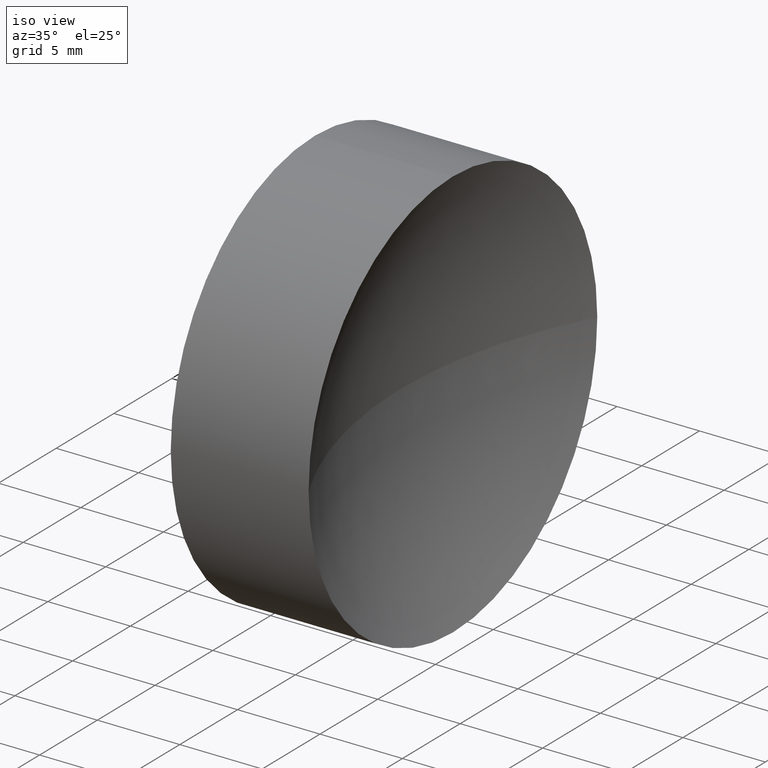
[diagram: clean part render]
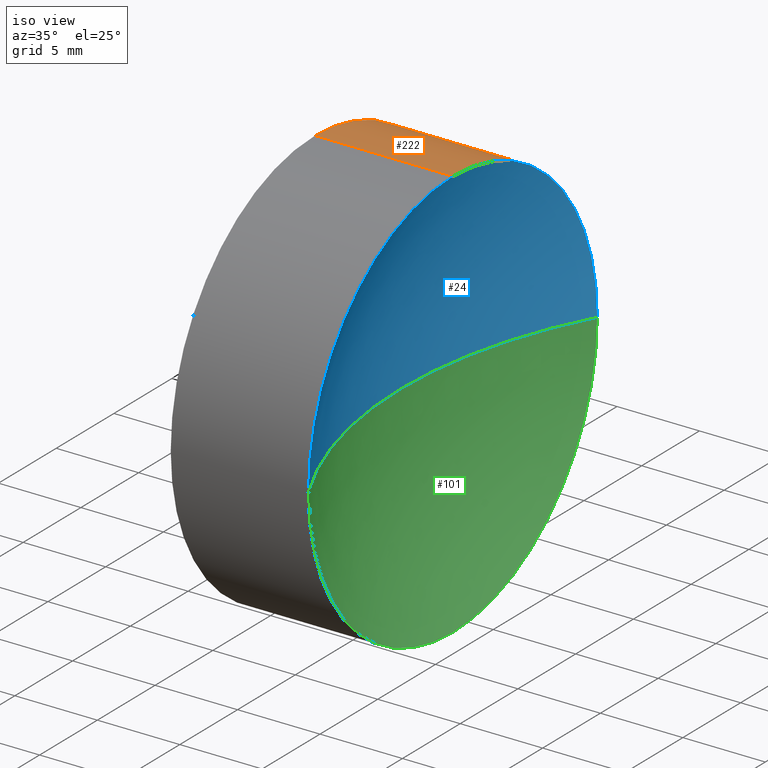
[diagram: same view with three faces highlighted in distinct colors, each labeled with its STEP entity id]
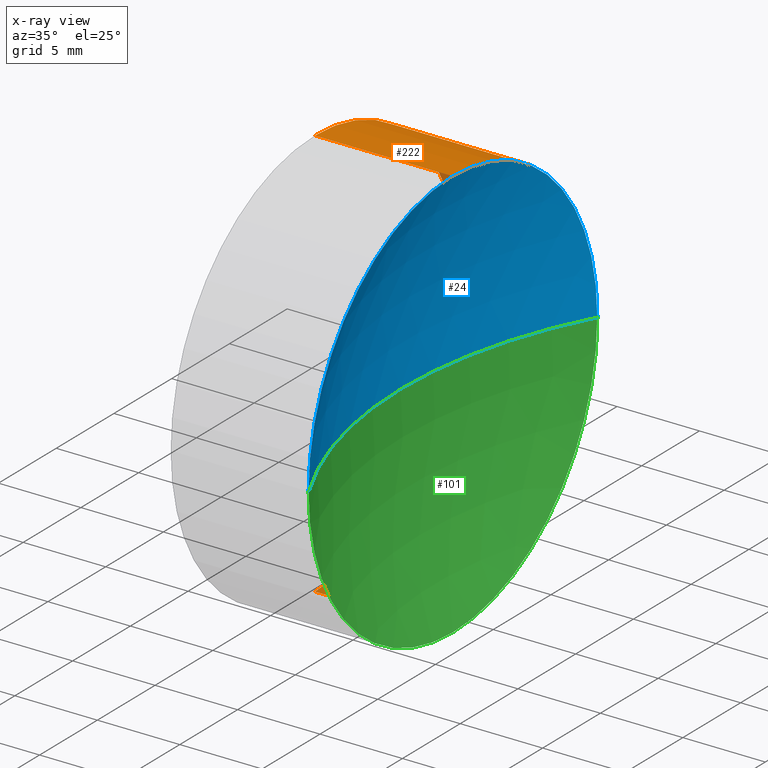
[diagram: x-ray of the same camera — body ghosted, the three highlighted faces saturated]
A machine part, iso view with three faces highlighted in distinct colors.
The next image is the same camera in x-ray (body ghosted, the three faces saturated) — at least one of them is partly hidden behind the body in this view.
Their STEP definitions:

[orange] entity #222 — the highlighted cylindrical surface (partial cylindrical patch) has radius 12.5 mm, axis along (-1, -0, -0).
#5 = ORIENTED_EDGE ( 'NONE', *, *, #220, .F. ) ;
#14 = DIRECTION ( 'NONE',  ( -1.000000000000000000, -0.0000000000000000000, -0.0000000000000000000 ) ) ;
#20 = DIRECTION ( 'NONE',  ( 0.0000000000000000000, 0.0000000000000000000, 1.000000000000000000 ) ) ;
#26 = CIRCLE ( 'NONE', #113, 12.49999999999999600 ) ;
#28 = CARTESIAN_POINT ( 'NONE',  ( 64.23215453445439500, 32.61130143649369700, 12.49999999999999600 ) ) ;
#34 = EDGE_LOOP ( 'NONE', ( #182, #98, #5, #79, #128, #52 ) ) ;
#36 = VECTOR ( 'NONE', #54, 1000.000000000000000 ) ;
#38 = CARTESIAN_POINT ( 'NONE',  ( 55.87281597442936500, 32.61130143649369700, 0.0000000000000000000 ) ) ;
#44 = AXIS2_PLACEMENT_3D ( 'NONE', #223, #45, #100 ) ;
#45 = DIRECTION ( 'NONE',  ( -1.000000000000000000, -0.0000000000000000000, -0.0000000000000000000 ) ) ;
#48 = CARTESIAN_POINT ( 'NONE',  ( 53.06232639267102500, 32.61130143649369700, -12.49999999999999600 ) ) ;
#52 = ORIENTED_EDGE ( 'NONE', *, *, #64, .T. ) ;
#54 = DIRECTION ( 'NONE',  ( -1.000000000000000000, -0.0000000000000000000, -0.0000000000000000000 ) ) ;
#57 = CIRCLE ( 'NONE', #202, 12.49999999999999600 ) ;
#62 = DIRECTION ( 'NONE',  ( -1.000000000000000000, -0.0000000000000000000, -0.0000000000000000000 ) ) ;
#63 = DIRECTION ( 'NONE',  ( 0.0000000000000000000, 0.0000000000000000000, 1.000000000000000000 ) ) ;
#64 = EDGE_CURVE ( 'NONE', #122, #75, #57, .T. ) ;
#74 = FACE_OUTER_BOUND ( 'NONE', #34, .T. ) ;
#75 = VERTEX_POINT ( 'NONE', #190 ) ;
#78 = CARTESIAN_POINT ( 'NONE',  ( 55.87281597442936500, 45.11130143649369700, 0.0000000000000000000 ) ) ;
#79 = ORIENTED_EDGE ( 'NONE', *, *, #114, .F. ) ;
#86 = CIRCLE ( 'NONE', #151, 12.49999999999999600 ) ;
#88 = CARTESIAN_POINT ( 'NONE',  ( 64.23215453445439500, 32.61130143649369700, -12.49999999999999600 ) ) ;
#90 = CARTESIAN_POINT ( 'NONE',  ( 55.87281597442936500, 32.61130143649369700, 12.49999999999999600 ) ) ;
#96 = LINE ( 'NONE', #126, #184 ) ;
#98 = ORIENTED_EDGE ( 'NONE', *, *, #147, .T. ) ;
#100 = DIRECTION ( 'NONE',  ( 0.0000000000000000000, 0.0000000000000000000, 1.000000000000000000 ) ) ;
#103 = CARTESIAN_POINT ( 'NONE',  ( 55.87281597442936500, 32.61130143649369700, 0.0000000000000000000 ) ) ;
#109 = AXIS2_PLACEMENT_3D ( 'NONE', #177, #157, #178 ) ;
#110 = VERTEX_POINT ( 'NONE', #209 ) ;
#113 = AXIS2_PLACEMENT_3D ( 'NONE', #103, #14, #63 ) ;
#114 = EDGE_CURVE ( 'NONE', #159, #214, #26, .T. ) ;
#122 = VERTEX_POINT ( 'NONE', #28 ) ;
#126 = CARTESIAN_POINT ( 'NONE',  ( 53.06232639267102500, 32.61130143649369700, 12.49999999999999600 ) ) ;
#128 = ORIENTED_EDGE ( 'NONE', *, *, #230, .F. ) ;
#146 = DIRECTION ( 'NONE',  ( -1.000000000000000000, -0.0000000000000000000, -0.0000000000000000000 ) ) ;
#147 = EDGE_CURVE ( 'NONE', #162, #110, #163, .T. ) ;
#151 = AXIS2_PLACEMENT_3D ( 'NONE', #38, #164, #20 ) ;
#157 = DIRECTION ( 'NONE',  ( -1.000000000000000000, -0.0000000000000000000, -0.0000000000000000000 ) ) ;
#159 = VERTEX_POINT ( 'NONE', #90 ) ;
#162 = VERTEX_POINT ( 'NONE', #88 ) ;
#163 = LINE ( 'NONE', #48, #36 ) ;
#164 = DIRECTION ( 'NONE',  ( -1.000000000000000000, -0.0000000000000000000, -0.0000000000000000000 ) ) ;
#165 = CARTESIAN_POINT ( 'NONE',  ( 64.23215453445439500, 32.61130143649369700, 0.0000000000000000000 ) ) ;
#174 = EDGE_CURVE ( 'NONE', #75, #162, #211, .T. ) ;
#177 = CARTESIAN_POINT ( 'NONE',  ( 53.06232639267102500, 32.61130143649369700, 0.0000000000000000000 ) ) ;
#178 = DIRECTION ( 'NONE',  ( 0.0000000000000000000, 0.0000000000000000000, 1.000000000000000000 ) ) ;
#182 = ORIENTED_EDGE ( 'NONE', *, *, #174, .T. ) ;
#184 = VECTOR ( 'NONE', #146, 1000.000000000000000 ) ;
#190 = CARTESIAN_POINT ( 'NONE',  ( 64.23215453445439500, 45.11130143649369700, 1.530808498934191100E-015 ) ) ;
#202 = AXIS2_PLACEMENT_3D ( 'NONE', #165, #62, #208 ) ;
#208 = DIRECTION ( 'NONE',  ( 0.0000000000000000000, 0.0000000000000000000, 1.000000000000000000 ) ) ;
#209 = CARTESIAN_POINT ( 'NONE',  ( 55.87281597442936500, 32.61130143649369700, -12.49999999999999600 ) ) ;
#211 = CIRCLE ( 'NONE', #44, 12.49999999999999600 ) ;
#214 = VERTEX_POINT ( 'NONE', #78 ) ;
#220 = EDGE_CURVE ( 'NONE', #214, #110, #86, .T. ) ;
#222 = ADVANCED_FACE ( 'NONE', ( #74 ), #229, .T. ) ;
#223 = CARTESIAN_POINT ( 'NONE',  ( 64.23215453445439500, 32.61130143649369700, 0.0000000000000000000 ) ) ;
#229 = CYLINDRICAL_SURFACE ( 'NONE', #109, 12.49999999999999600 ) ;
#230 = EDGE_CURVE ( 'NONE', #122, #159, #96, .T. ) ;

[blue] entity #24 — the highlighted spherical surface has radius 26.16 mm.
#1 = EDGE_CURVE ( 'NONE', #153, #143, #137, .T. ) ;
#2 = CARTESIAN_POINT ( 'NONE',  ( 64.23215453445439500, 20.11130143649370100, 0.0000000000000000000 ) ) ;
#11 = CIRCLE ( 'NONE', #30, 26.16000000000000400 ) ;
#17 = DIRECTION ( 'NONE',  ( 0.0000000000000000000, 0.0000000000000000000, -1.000000000000000000 ) ) ;
#18 = EDGE_CURVE ( 'NONE', #75, #143, #11, .T. ) ;
#24 = ADVANCED_FACE ( 'NONE', ( #106 ), #180, .F. ) ;
#28 = CARTESIAN_POINT ( 'NONE',  ( 64.23215453445439500, 32.61130143649369700, 12.49999999999999600 ) ) ;
#29 = DIRECTION ( 'NONE',  ( 0.0000000000000000000, 0.0000000000000000000, 1.000000000000000000 ) ) ;
#30 = AXIS2_PLACEMENT_3D ( 'NONE', #172, #53, #77 ) ;
#33 = CARTESIAN_POINT ( 'NONE',  ( 87.21248525444187300, 32.61130143649369700, 0.0000000000000000000 ) ) ;
#47 = DIRECTION ( 'NONE',  ( 0.0000000000000000000, -1.000000000000000000, 0.0000000000000000000 ) ) ;
#53 = DIRECTION ( 'NONE',  ( 0.0000000000000000000, -1.224646799147353200E-016, 1.000000000000000000 ) ) ;
#57 = CIRCLE ( 'NONE', #202, 12.49999999999999600 ) ;
#62 = DIRECTION ( 'NONE',  ( -1.000000000000000000, -0.0000000000000000000, -0.0000000000000000000 ) ) ;
#64 = EDGE_CURVE ( 'NONE', #122, #75, #57, .T. ) ;
#65 = ORIENTED_EDGE ( 'NONE', *, *, #18, .F. ) ;
#75 = VERTEX_POINT ( 'NONE', #190 ) ;
#76 = AXIS2_PLACEMENT_3D ( 'NONE', #99, #227, #47 ) ;
#77 = DIRECTION ( 'NONE',  ( 0.0000000000000000000, -1.000000000000000000, -1.224646799147353200E-016 ) ) ;
#82 = EDGE_CURVE ( 'NONE', #153, #122, #194, .T. ) ;
#87 = ORIENTED_EDGE ( 'NONE', *, *, #82, .F. ) ;
#92 = EDGE_LOOP ( 'NONE', ( #65, #169, #87, #155 ) ) ;
#99 = CARTESIAN_POINT ( 'NONE',  ( 87.21248525444187300, 32.61130143649369700, 0.0000000000000000000 ) ) ;
#106 = FACE_OUTER_BOUND ( 'NONE', #92, .T. ) ;
#107 = AXIS2_PLACEMENT_3D ( 'NONE', #33, #17, #195 ) ;
#122 = VERTEX_POINT ( 'NONE', #28 ) ;
#134 = CARTESIAN_POINT ( 'NONE',  ( 64.23215453445439500, 32.61130143649369700, 0.0000000000000000000 ) ) ;
#137 = CIRCLE ( 'NONE', #107, 26.16000000000000400 ) ;
#143 = VERTEX_POINT ( 'NONE', #166 ) ;
#153 = VERTEX_POINT ( 'NONE', #2 ) ;
#155 = ORIENTED_EDGE ( 'NONE', *, *, #1, .T. ) ;
#165 = CARTESIAN_POINT ( 'NONE',  ( 64.23215453445439500, 32.61130143649369700, 0.0000000000000000000 ) ) ;
#166 = CARTESIAN_POINT ( 'NONE',  ( 61.05248525444187600, 32.61130143649369700, 0.0000000000000000000 ) ) ;
#169 = ORIENTED_EDGE ( 'NONE', *, *, #64, .F. ) ;
#172 = CARTESIAN_POINT ( 'NONE',  ( 87.21248525444187300, 32.61130143649369700, 0.0000000000000000000 ) ) ;
#180 = SPHERICAL_SURFACE ( 'NONE', #76, 26.16000000000000400 ) ;
#190 = CARTESIAN_POINT ( 'NONE',  ( 64.23215453445439500, 45.11130143649369700, 1.530808498934191100E-015 ) ) ;
#191 = DIRECTION ( 'NONE',  ( -1.000000000000000000, -0.0000000000000000000, -0.0000000000000000000 ) ) ;
#194 = CIRCLE ( 'NONE', #212, 12.49999999999999600 ) ;
#195 = DIRECTION ( 'NONE',  ( -1.000000000000000000, 0.0000000000000000000, 0.0000000000000000000 ) ) ;
#202 = AXIS2_PLACEMENT_3D ( 'NONE', #165, #62, #208 ) ;
#208 = DIRECTION ( 'NONE',  ( 0.0000000000000000000, 0.0000000000000000000, 1.000000000000000000 ) ) ;
#212 = AXIS2_PLACEMENT_3D ( 'NONE', #134, #191, #29 ) ;
#227 = DIRECTION ( 'NONE',  ( 0.0000000000000000000, 0.0000000000000000000, 1.000000000000000000 ) ) ;

[green] entity #101 — the highlighted spherical surface has radius 26.16 mm.
#1 = EDGE_CURVE ( 'NONE', #153, #143, #137, .T. ) ;
#2 = CARTESIAN_POINT ( 'NONE',  ( 64.23215453445439500, 20.11130143649370100, 0.0000000000000000000 ) ) ;
#11 = CIRCLE ( 'NONE', #30, 26.16000000000000400 ) ;
#17 = DIRECTION ( 'NONE',  ( 0.0000000000000000000, 0.0000000000000000000, -1.000000000000000000 ) ) ;
#18 = EDGE_CURVE ( 'NONE', #75, #143, #11, .T. ) ;
#23 = ORIENTED_EDGE ( 'NONE', *, *, #174, .F. ) ;
#30 = AXIS2_PLACEMENT_3D ( 'NONE', #172, #53, #77 ) ;
#33 = CARTESIAN_POINT ( 'NONE',  ( 87.21248525444187300, 32.61130143649369700, 0.0000000000000000000 ) ) ;
#37 = ORIENTED_EDGE ( 'NONE', *, *, #18, .T. ) ;
#39 = ORIENTED_EDGE ( 'NONE', *, *, #1, .F. ) ;
#44 = AXIS2_PLACEMENT_3D ( 'NONE', #223, #45, #100 ) ;
#45 = DIRECTION ( 'NONE',  ( -1.000000000000000000, -0.0000000000000000000, -0.0000000000000000000 ) ) ;
#50 = DIRECTION ( 'NONE',  ( 0.0000000000000000000, -1.000000000000000000, 0.0000000000000000000 ) ) ;
#53 = DIRECTION ( 'NONE',  ( 0.0000000000000000000, -1.224646799147353200E-016, 1.000000000000000000 ) ) ;
#60 = DIRECTION ( 'NONE',  ( 0.0000000000000000000, 0.0000000000000000000, 1.000000000000000000 ) ) ;
#75 = VERTEX_POINT ( 'NONE', #190 ) ;
#77 = DIRECTION ( 'NONE',  ( 0.0000000000000000000, -1.000000000000000000, -1.224646799147353200E-016 ) ) ;
#80 = CIRCLE ( 'NONE', #168, 12.49999999999999600 ) ;
#84 = CARTESIAN_POINT ( 'NONE',  ( 87.21248525444187300, 32.61130143649369700, 0.0000000000000000000 ) ) ;
#88 = CARTESIAN_POINT ( 'NONE',  ( 64.23215453445439500, 32.61130143649369700, -12.49999999999999600 ) ) ;
#100 = DIRECTION ( 'NONE',  ( 0.0000000000000000000, 0.0000000000000000000, 1.000000000000000000 ) ) ;
#101 = ADVANCED_FACE ( 'NONE', ( #231 ), #232, .F. ) ;
#107 = AXIS2_PLACEMENT_3D ( 'NONE', #33, #17, #195 ) ;
#129 = AXIS2_PLACEMENT_3D ( 'NONE', #84, #152, #50 ) ;
#130 = CARTESIAN_POINT ( 'NONE',  ( 64.23215453445439500, 32.61130143649369700, 0.0000000000000000000 ) ) ;
#132 = ORIENTED_EDGE ( 'NONE', *, *, #192, .F. ) ;
#137 = CIRCLE ( 'NONE', #107, 26.16000000000000400 ) ;
#143 = VERTEX_POINT ( 'NONE', #166 ) ;
#152 = DIRECTION ( 'NONE',  ( 0.0000000000000000000, 0.0000000000000000000, 1.000000000000000000 ) ) ;
#153 = VERTEX_POINT ( 'NONE', #2 ) ;
#161 = DIRECTION ( 'NONE',  ( -1.000000000000000000, -0.0000000000000000000, -0.0000000000000000000 ) ) ;
#162 = VERTEX_POINT ( 'NONE', #88 ) ;
#166 = CARTESIAN_POINT ( 'NONE',  ( 61.05248525444187600, 32.61130143649369700, 0.0000000000000000000 ) ) ;
#168 = AXIS2_PLACEMENT_3D ( 'NONE', #130, #161, #60 ) ;
#172 = CARTESIAN_POINT ( 'NONE',  ( 87.21248525444187300, 32.61130143649369700, 0.0000000000000000000 ) ) ;
#174 = EDGE_CURVE ( 'NONE', #75, #162, #211, .T. ) ;
#190 = CARTESIAN_POINT ( 'NONE',  ( 64.23215453445439500, 45.11130143649369700, 1.530808498934191100E-015 ) ) ;
#192 = EDGE_CURVE ( 'NONE', #162, #153, #80, .T. ) ;
#195 = DIRECTION ( 'NONE',  ( -1.000000000000000000, 0.0000000000000000000, 0.0000000000000000000 ) ) ;
#204 = EDGE_LOOP ( 'NONE', ( #23, #37, #39, #132 ) ) ;
#211 = CIRCLE ( 'NONE', #44, 12.49999999999999600 ) ;
#223 = CARTESIAN_POINT ( 'NONE',  ( 64.23215453445439500, 32.61130143649369700, 0.0000000000000000000 ) ) ;
#231 = FACE_OUTER_BOUND ( 'NONE', #204, .T. ) ;
#232 = SPHERICAL_SURFACE ( 'NONE', #129, 26.16000000000000400 ) ;